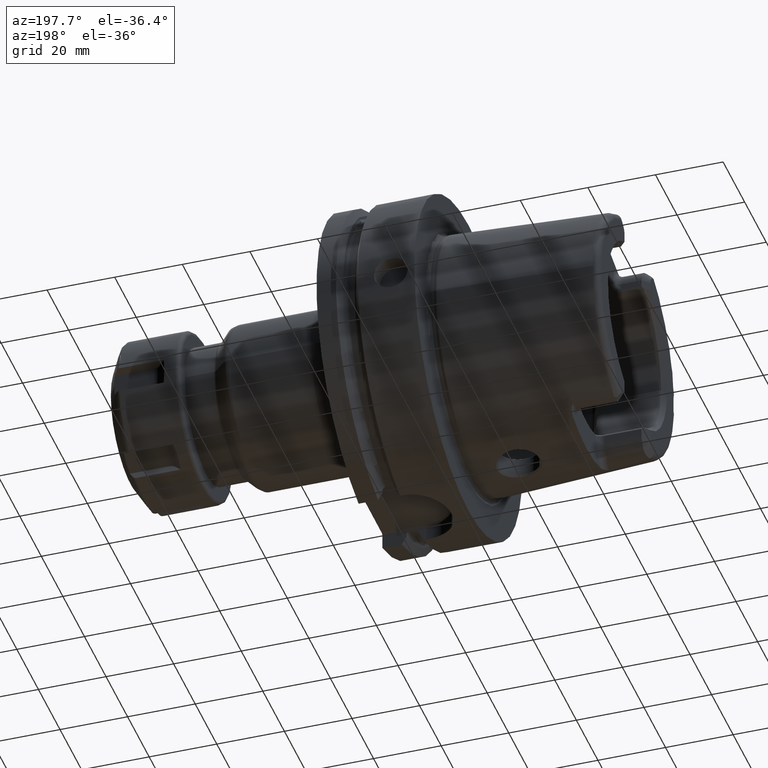
[diagram: clean part render]
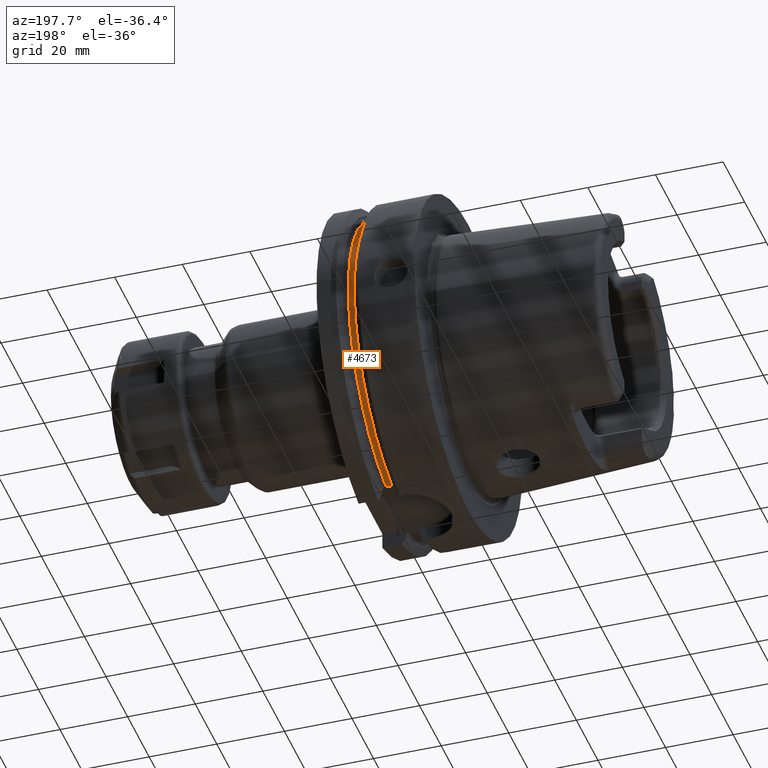
[diagram: same view with one face highlighted and labeled with its STEP entity id]
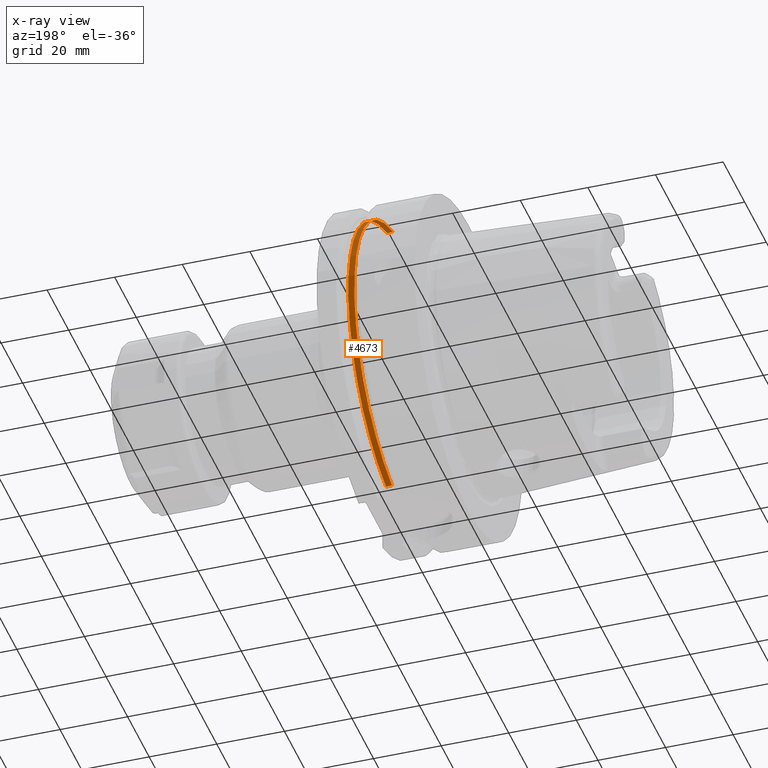
[diagram: x-ray of the same camera — body ghosted, the highlighted face saturated]
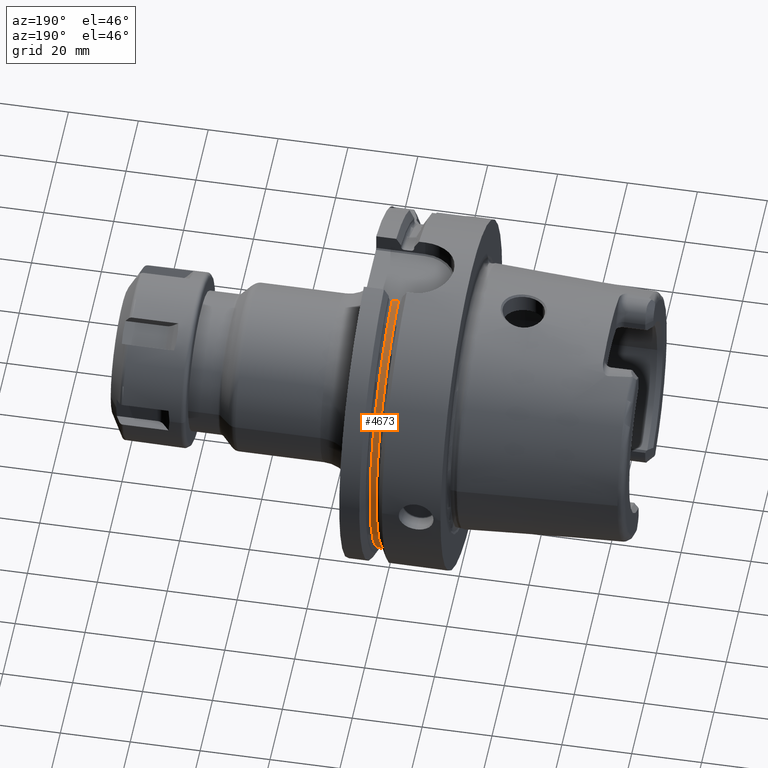
[diagram: same view with one face highlighted and labeled with its STEP entity id]
A machine part, auxiliary view. The second image highlights one B-rep face of the part: STEP entity #4673.
The next image is the same camera in x-ray: the body ghosted, the highlighted face saturated — about 5% of this face is hidden behind the body in this view.
A second angle (auxiliary view) of the same face is appended — the face is thin or edge-on in the first view.
In plain terms, the highlighted cylindrical surface (partial cylindrical patch) has radius 46 mm, axis along (1, 0, 0).
Its self-contained STEP definition (entity closure, byte-faithful):
#1355=CARTESIAN_POINT('',(1.9125E1,1.1021E1,-4.466024584572E1));
#1379=CARTESIAN_POINT('',(1.9125E1,1.0021E1,4.489520641449E1));
#1452=DIRECTION('',(1.E0,0.E0,0.E0));
#1453=VECTOR('',#1452,1.75E0);
#1454=CARTESIAN_POINT('',(1.9125E1,1.1021E1,-4.466024584572E1));
#1455=LINE('',#1454,#1453);
#1456=DIRECTION('',(1.E0,0.E0,0.E0));
#1457=VECTOR('',#1456,1.75E0);
#1458=CARTESIAN_POINT('',(1.9125E1,1.0021E1,4.489520641449E1));
#1459=LINE('',#1458,#1457);
#1460=CARTESIAN_POINT('',(1.9125E1,0.E0,0.E0));
#1461=DIRECTION('',(-1.E0,0.E0,0.E0));
#1462=DIRECTION('',(0.E0,2.178478260870E-1,9.759827481412E-1));
#1463=AXIS2_PLACEMENT_3D('',#1460,#1461,#1462);
#1522=CARTESIAN_POINT('',(2.0875E1,0.E0,0.E0));
#1523=DIRECTION('',(-1.E0,0.E0,0.E0));
#1524=DIRECTION('',(0.E0,2.178478260870E-1,9.759827481412E-1));
#1525=AXIS2_PLACEMENT_3D('',#1522,#1523,#1524);
#3043=VERTEX_POINT('',#1379);
#3046=CARTESIAN_POINT('',(2.0875E1,1.0021E1,4.489520641449E1));
#3047=VERTEX_POINT('',#3046);
#3080=VERTEX_POINT('',#1355);
#3082=CARTESIAN_POINT('',(2.0875E1,1.1021E1,-4.466024584572E1));
#3083=VERTEX_POINT('',#3082);
#4660=CARTESIAN_POINT('',(1.615E1,0.E0,0.E0));
#4661=DIRECTION('',(1.E0,0.E0,0.E0));
#4662=DIRECTION('',(0.E0,-1.E0,0.E0));
#4663=AXIS2_PLACEMENT_3D('',#4660,#4661,#4662);
#4664=CYLINDRICAL_SURFACE('',#4663,4.6E1);
#4665=ORIENTED_EDGE('',*,*,#4385,.T.);
#4667=ORIENTED_EDGE('',*,*,#4666,.F.);
#4669=ORIENTED_EDGE('',*,*,#4668,.F.);
#4670=ORIENTED_EDGE('',*,*,#4623,.T.);
#4671=EDGE_LOOP('',(#4665,#4667,#4669,#4670));
#4672=FACE_OUTER_BOUND('',#4671,.F.);
#4673=ADVANCED_FACE('',(#4672),#4664,.T.);
#1464=CIRCLE('',#1463,4.6E1);
#1526=CIRCLE('',#1525,4.6E1);
#4385=EDGE_CURVE('',#3080,#3083,#1455,.T.);
#4623=EDGE_CURVE('',#3043,#3080,#1464,.T.);
#4666=EDGE_CURVE('',#3047,#3083,#1526,.T.);
#4668=EDGE_CURVE('',#3043,#3047,#1459,.T.);